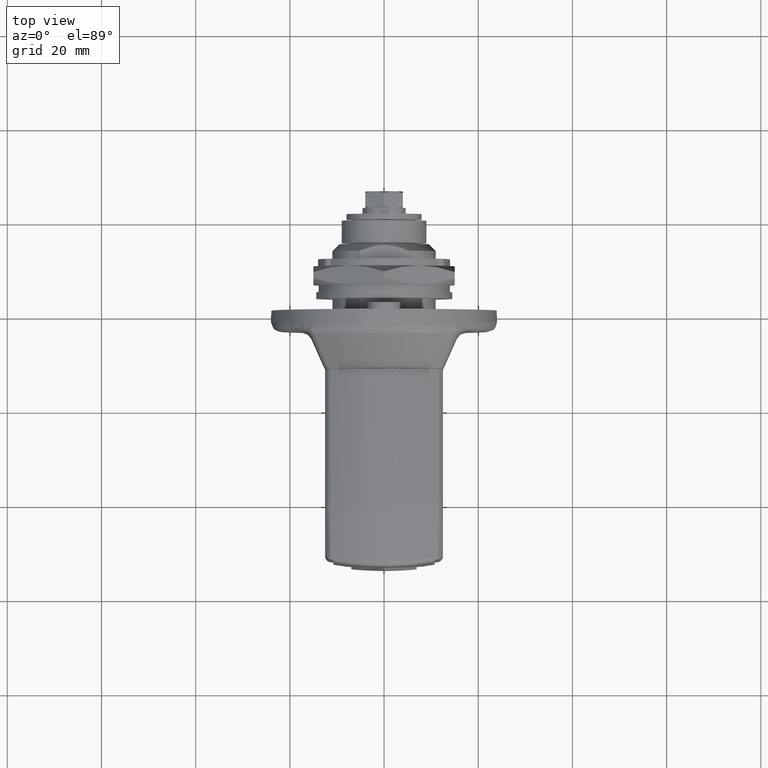
[diagram: clean part render]
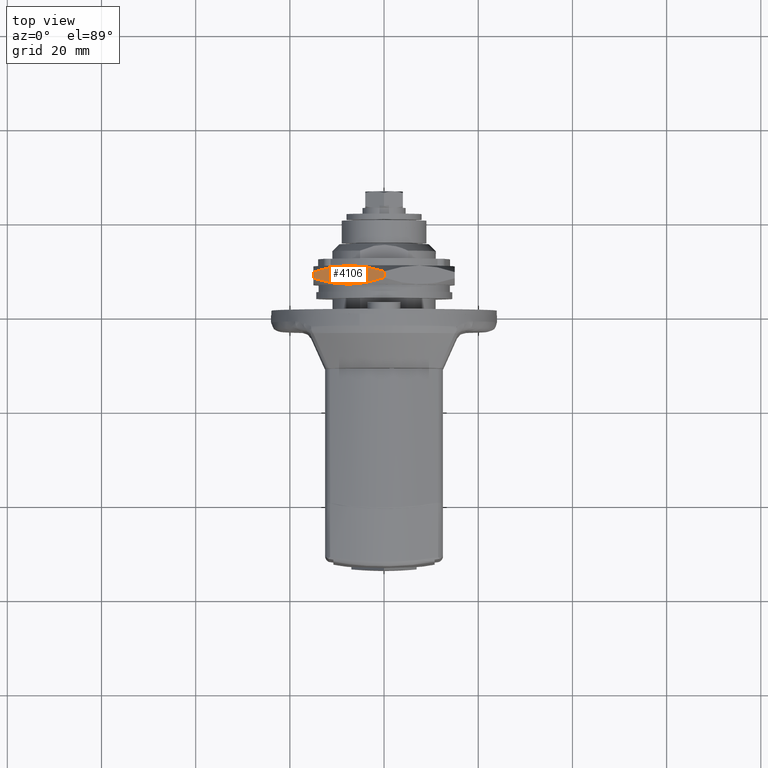
[diagram: same view with one face highlighted and labeled with its STEP entity id]
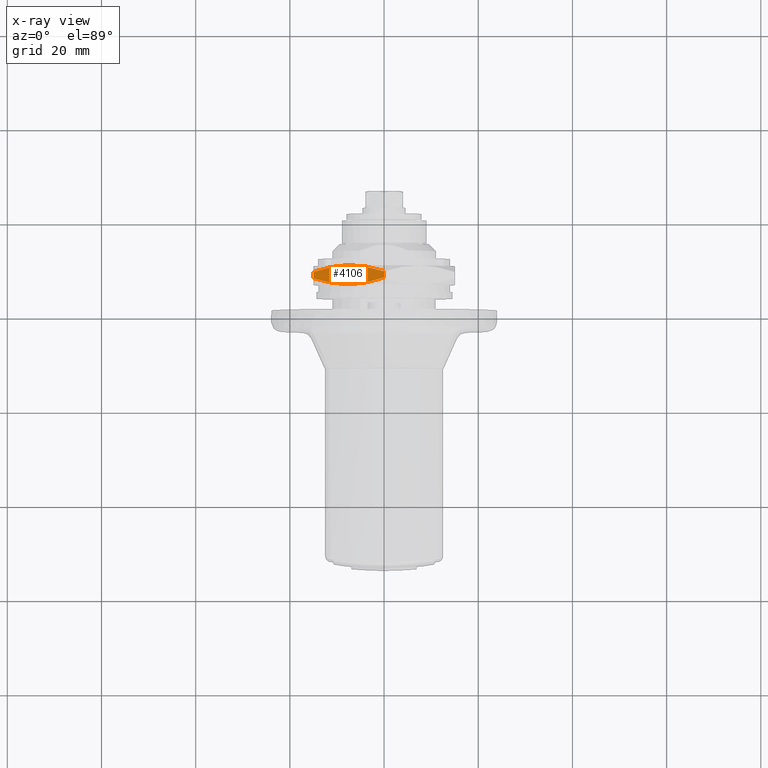
[diagram: x-ray of the same camera — body ghosted, the highlighted face saturated]
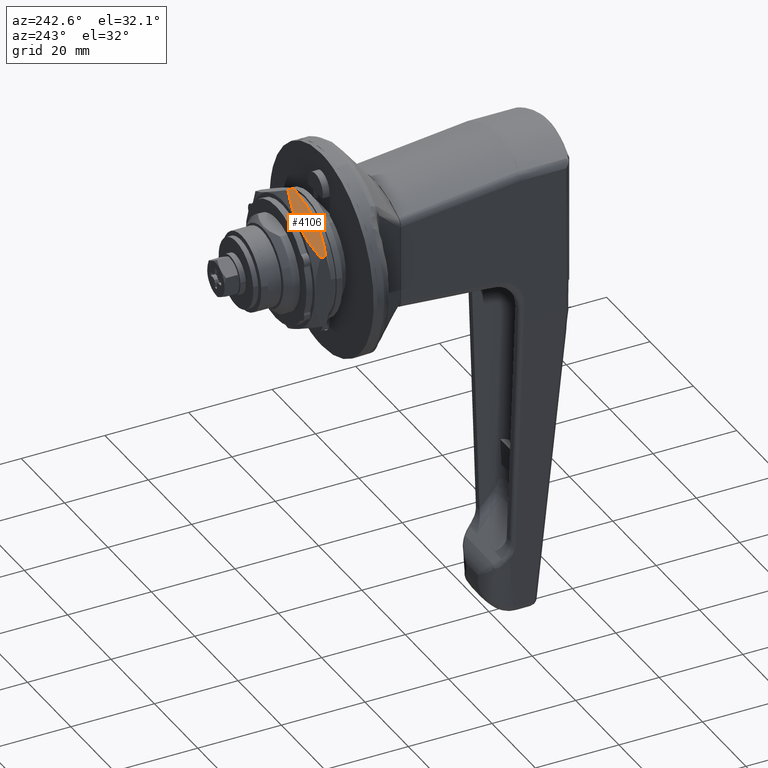
[diagram: same view with one face highlighted and labeled with its STEP entity id]
A machine part, top view. The second image highlights one B-rep face of the part: STEP entity #4106.
The next image is the same camera in x-ray: the body ghosted, the highlighted face saturated — about 0% of this face is hidden behind the body in this view.
A second angle (auxiliary view) of the same face is appended — the face is thin or edge-on in the first view.
In plain terms, the highlighted face is a freeform B-spline surface patch.
Its self-contained STEP definition (entity closure, byte-faithful):
#3203=CARTESIAN_POINT('',(58.895902999999898,7.499999950838779,12.990381028383419));
#3204=VERTEX_POINT('',#3203);
#3954=CARTESIAN_POINT('',(57.556157967225801,15.0,8.660254000000180));
#3955=VERTEX_POINT('',#3954);
#4005=CARTESIAN_POINT('',(56.235649032774099,15.0,8.660254000000180));
#4006=VERTEX_POINT('',#4005);
#4023=CARTESIAN_POINT('',(57.556157967225801,15.0,8.660254000000180));
#4024=CARTESIAN_POINT('',(56.235649032774099,15.0,8.660254000000180));
#4025=QUASI_UNIFORM_CURVE('',1,(#4023,#4024),.UNSPECIFIED.,.F.,.U.);
#4026=EDGE_CURVE('',#3955,#4006,#4025,.T.);
#4031=CARTESIAN_POINT('',(54.696104550911564,-0.749249548499298,17.753087426626131));
#4032=CARTESIAN_POINT('',(54.696104550911564,15.749250353161990,8.227674108802010));
#4033=CARTESIAN_POINT('',(59.095704524687903,-0.749249548499298,17.753087426626131));
#4034=CARTESIAN_POINT('',(59.095704524687903,15.749250353161990,8.227674108802010));
#4035=B_SPLINE_SURFACE_WITH_KNOTS('',1,1,((#4031,#4033),(#4032,#4034)),.UNSPECIFIED.,.F.,.F.,.U.,(2,2),(2,2),(0.0,19.050826698085800),(0.0,4.399599973776333),.UNSPECIFIED.);
#4036=CARTESIAN_POINT('',(57.556157999999897,0.0,17.320508000000199));
#4037=VERTEX_POINT('',#4036);
#4038=CARTESIAN_POINT('',(57.556157999999897,0.0,17.320508000000199));
#4039=CARTESIAN_POINT('',(57.964360496546597,1.224607933574908,16.613480282988601));
#4040=CARTESIAN_POINT('',(58.300793184258893,2.458144031801751,15.901297887734380));
#4041=CARTESIAN_POINT('',(58.650344436170471,4.327742343866929,14.821884803703989));
#4042=CARTESIAN_POINT('',(58.740949902108142,4.954165186661579,14.460219408370410));
#4043=CARTESIAN_POINT('',(58.863517406506048,6.214306114982830,13.732676707366551));
#4044=CARTESIAN_POINT('',(58.895428771091062,6.848030504339812,13.366795762178119));
#4045=CARTESIAN_POINT('',(58.895901245458703,7.490443984254227,12.995898168239270));
#4046=CARTESIAN_POINT('',(58.895903001704177,7.495221858202021,12.993139661441409));
#4047=CARTESIAN_POINT('',(58.895902999999898,7.499999950838779,12.990381028383419));
#4048=B_SPLINE_CURVE_WITH_KNOTS('',3,(#4038,#4039,#4040,#4041,#4042,#4043,#4044,#4045,#4046,#4047),.UNSPECIFIED.,.F.,.U.,(4,2,2,2,4),(0.0,0.250000000000000,0.375000000000000,0.500000000000000,0.500936595608776),.UNSPECIFIED.);
#4049=EDGE_CURVE('',#4037,#3204,#4048,.T.);
#4050=ORIENTED_EDGE('',*,*,#4049,.T.);
#4051=CARTESIAN_POINT('',(58.895902999999898,7.499999950838779,12.990381028383419));
#4052=CARTESIAN_POINT('',(58.895902986191203,7.654645406101955,12.901096433548441));
#4053=CARTESIAN_POINT('',(58.894061472727493,7.809519943940947,12.811679577827221));
#4054=CARTESIAN_POINT('',(58.886555205897601,8.124522723285365,12.629812639171980));
#4055=CARTESIAN_POINT('',(58.880777091136487,8.284408267390827,12.537502677646550));
#4056=CARTESIAN_POINT('',(58.857660553669490,8.762878872128448,12.261257546409119));
#4057=CARTESIAN_POINT('',(58.834523835590339,9.080751019789696,12.077733977190990));
#4058=CARTESIAN_POINT('',(58.742939659956278,10.031186585564701,11.528999749841301));
#4059=CARTESIAN_POINT('',(58.652266339495426,10.660561689772869,11.165629865593360));
#4060=CARTESIAN_POINT('',(58.302134796705921,12.537481847293060,10.081989512137040));
#4061=CARTESIAN_POINT('',(57.964869354306707,13.773865406324459,9.368163134627976));
#4062=CARTESIAN_POINT('',(57.556157967225801,15.0,8.660254000000180));
#4063=B_SPLINE_CURVE_WITH_KNOTS('',3,(#4051,#4052,#4053,#4054,#4055,#4056,#4057,#4058,#4059,#4060,#4061,#4062),.UNSPECIFIED.,.F.,.U.,(4,2,2,2,2,4),(0.500936595608776,0.531250000000000,0.562500000000000,0.625000000000000,0.750000000000000,1.0),.UNSPECIFIED.);
#4064=EDGE_CURVE('',#3204,#3955,#4063,.T.);
#4065=ORIENTED_EDGE('',*,*,#4064,.T.);
#4066=ORIENTED_EDGE('',*,*,#4026,.T.);
#4067=CARTESIAN_POINT('',(54.895902999999898,7.499999950838790,12.990381028383419));
#4068=VERTEX_POINT('',#4067);
#4069=CARTESIAN_POINT('',(56.235649032774099,15.0,8.660254000000180));
#4070=CARTESIAN_POINT('',(55.827446361510233,13.775392067433890,9.367281716429339));
#4071=CARTESIAN_POINT('',(55.491013498209327,12.541855970126230,10.079464111152880));
#4072=CARTESIAN_POINT('',(55.141461981711593,10.672257659161570,11.158877194547870));
#4073=CARTESIAN_POINT('',(55.050856427386442,10.045834816686151,11.520542589697140));
#4074=CARTESIAN_POINT('',(54.928288745981682,8.785693888870441,12.248085290409129));
#4075=CARTESIAN_POINT('',(54.896377292778347,8.151969499699476,12.613966235490160));
#4076=CARTESIAN_POINT('',(54.895904729109667,7.509555985703289,12.984863849106119));
#4077=CARTESIAN_POINT('',(54.895902972200240,7.504778077572130,12.987622375639759));
#4078=CARTESIAN_POINT('',(54.895902999999898,7.499999950838790,12.990381028383419));
#4079=B_SPLINE_CURVE_WITH_KNOTS('',3,(#4069,#4070,#4071,#4072,#4073,#4074,#4075,#4076,#4077,#4078),.UNSPECIFIED.,.F.,.U.,(4,2,2,2,4),(0.0,0.250000000000000,0.375000000000000,0.500000000000000,0.500936602309500),.UNSPECIFIED.);
#4080=EDGE_CURVE('',#4006,#4068,#4079,.T.);
#4081=ORIENTED_EDGE('',*,*,#4080,.T.);
#4082=CARTESIAN_POINT('',(56.235648999999903,0.0,17.320508000000199));
#4083=VERTEX_POINT('',#4082);
#4084=CARTESIAN_POINT('',(54.895902999999898,7.499999950838790,12.990381028383419));
#4085=CARTESIAN_POINT('',(54.895903007753830,7.345354529368911,13.079665603707831));
#4086=CARTESIAN_POINT('',(54.897744541144888,7.190480025843500,13.169082439618091));
#4087=CARTESIAN_POINT('',(54.905250847750118,6.875477280922945,13.350949358398710));
#4088=CARTESIAN_POINT('',(54.911028983155838,6.715591736736132,13.443259319971110));
#4089=CARTESIAN_POINT('',(54.934145582520721,6.237121131838478,13.719504451300930));
#4090=CARTESIAN_POINT('',(54.957282341880699,5.919248984052127,13.903028020591290));
#4091=CARTESIAN_POINT('',(55.048866641446182,4.968813417855283,14.451762248184529));
#4092=CARTESIAN_POINT('',(55.139540044649912,4.339438313304210,14.815132132630451));
#4093=CARTESIAN_POINT('',(55.489671836256917,2.462518154630970,15.898772486752479));
#4094=CARTESIAN_POINT('',(55.826937445352812,1.226134594670672,16.612598864797850));
#4095=CARTESIAN_POINT('',(56.235648999999903,0.0,17.320508000000199));
#4096=B_SPLINE_CURVE_WITH_KNOTS('',3,(#4084,#4085,#4086,#4087,#4088,#4089,#4090,#4091,#4092,#4093,#4094,#4095),.UNSPECIFIED.,.F.,.U.,(4,2,2,2,2,4),(0.500936602331341,0.531250000000000,0.562500000000000,0.625000000000000,0.750000000000000,1.0),.UNSPECIFIED.);
#4097=EDGE_CURVE('',#4068,#4083,#4096,.T.);
#4098=ORIENTED_EDGE('',*,*,#4097,.T.);
#4099=CARTESIAN_POINT('',(57.556157999999897,0.0,17.320508000000199));
#4100=CARTESIAN_POINT('',(56.235648999999903,0.0,17.320508000000199));
#4101=QUASI_UNIFORM_CURVE('',1,(#4099,#4100),.UNSPECIFIED.,.F.,.U.);
#4102=EDGE_CURVE('',#4037,#4083,#4101,.T.);
#4103=ORIENTED_EDGE('',*,*,#4102,.F.);
#4104=EDGE_LOOP('',(#4050,#4065,#4066,#4081,#4098,#4103));
#4105=FACE_OUTER_BOUND('',#4104,.T.);
#4106=ADVANCED_FACE('',(#4105),#4035,.F.);